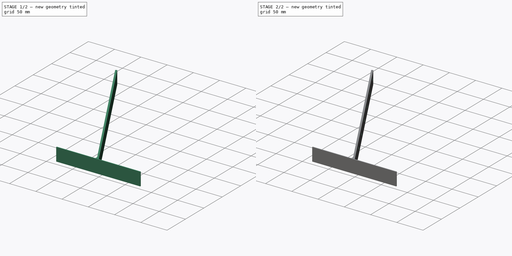
[diagram: build sequence overview — one tinted view per stage of 2, left to right]
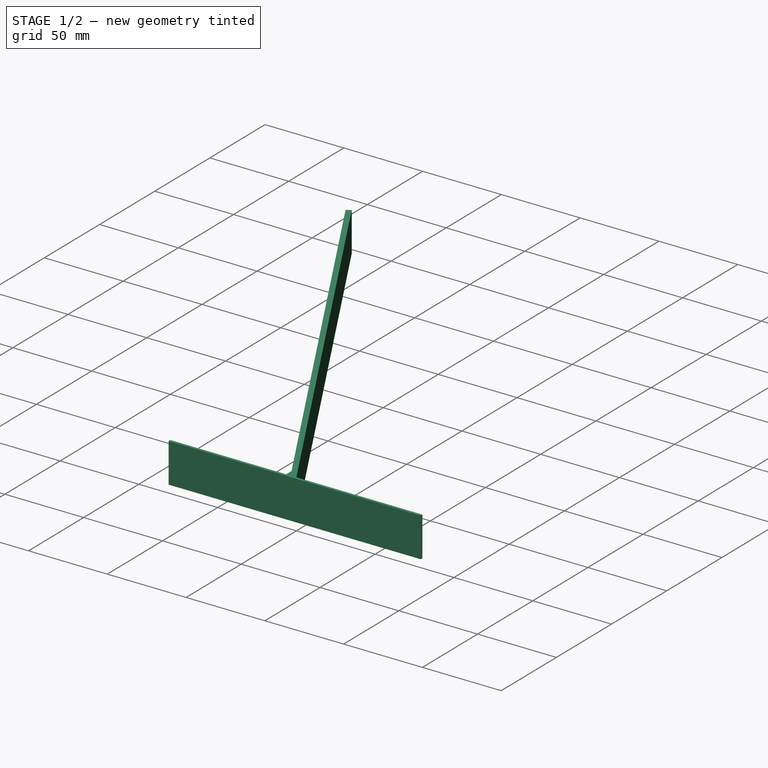
[diagram: stage 1 of 2 — iso view after this stage's code; geometry added in this stage tinted green]
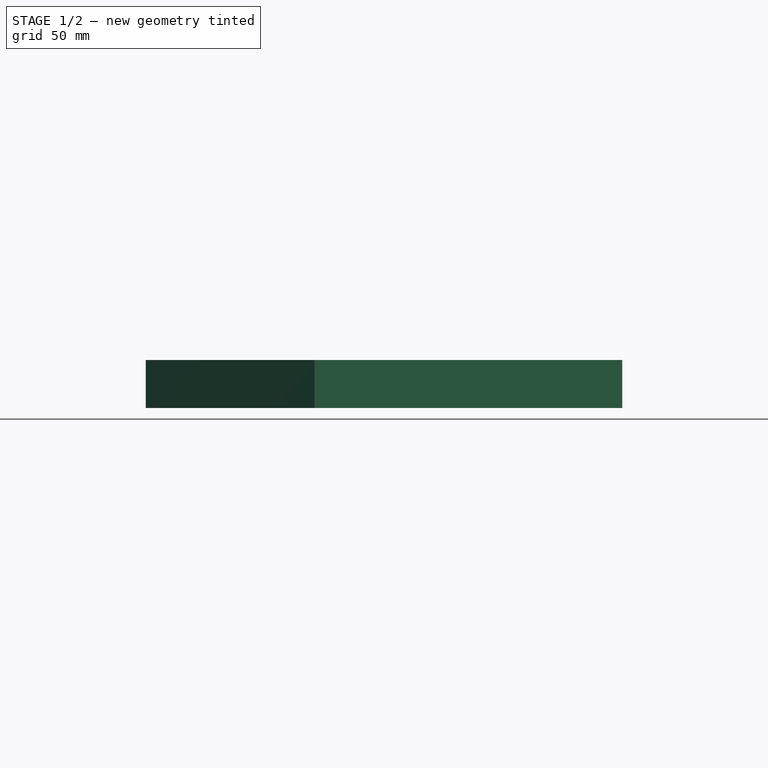
[diagram: stage 1 of 2 — front view after this stage's code; geometry added in this stage tinted green]
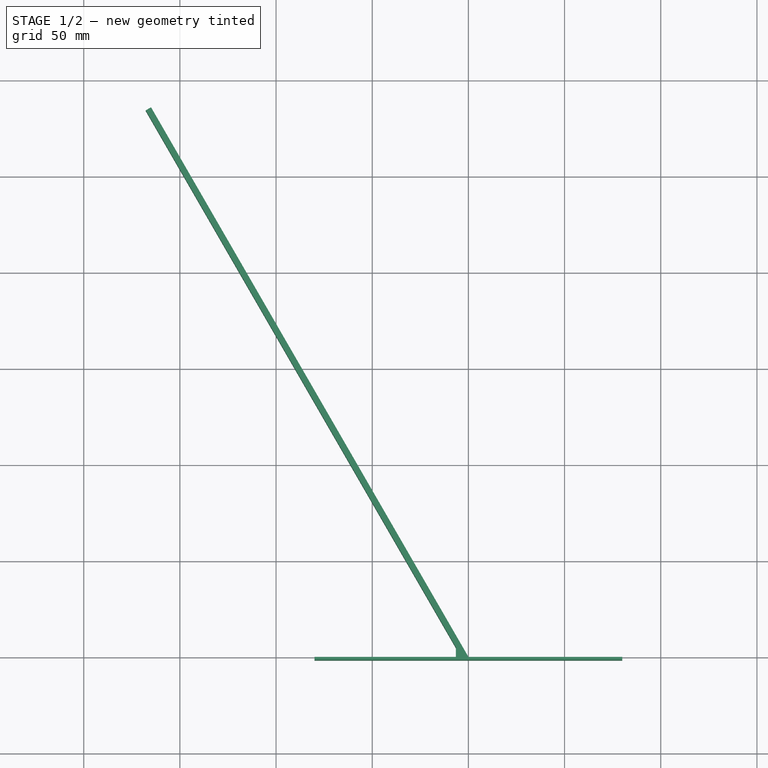
[diagram: stage 1 of 2 — top view after this stage's code; geometry added in this stage tinted green]
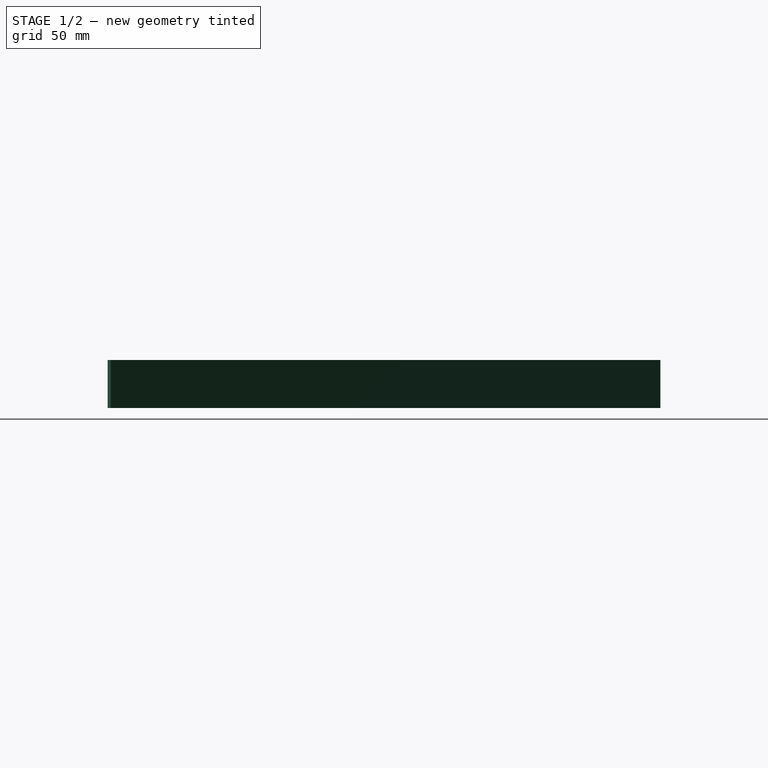
[diagram: stage 1 of 2 — right view after this stage's code; geometry added in this stage tinted green]
FCSTD DOCUMENT  (FreeCAD 0.18R16110 (Git))
Label: manifoldplant1
License: All rights reserved
LicenseURL: http://en.wikipedia.org/wiki/All_rights_reserved
objects: Sketcher::SketchObject×2, PartDesign::Pad×1, PartDesign::Pocket×1, PartDesign::Body×1
note: 7 computed .brp shape members not serialized (recipe doc carries the construction recipe); baked Part::Feature solids carry a one-line shape summary decoded from their .brp

FEATURE [Sketcher::SketchObject] Sketch
  MapMode = 5
  Support = -> [XY_Plane]
  sketch-geometry (9):
    g0: LineSegment StartX=0 StartY=0 StartZ=0 EndX=-165 EndY=285.788 EndZ=0
    g1: LineSegment StartX=0 StartY=0 StartZ=0 EndX=80 EndY=0 EndZ=0
    g2: LineSegment StartX=80 StartY=0 StartZ=0 EndX=80 EndY=-1.6 EndZ=0
    g3: LineSegment StartX=80 StartY=-1.6 StartZ=0 EndX=-80 EndY=-1.6 EndZ=0
    g4: LineSegment StartX=-80 StartY=-1.6 StartZ=0 EndX=-80 EndY=0 EndZ=0
    g5: LineSegment StartX=-80 StartY=0 StartZ=0 EndX=-6.5 EndY=0 EndZ=0
    g6: LineSegment StartX=-165 StartY=285.788 StartZ=0 EndX=-167.771 EndY=284.188 EndZ=0
    g7: LineSegment StartX=-167.771 StartY=284.188 StartZ=0 EndX=-6.5 EndY=4.85833 EndZ=0
    g8: LineSegment StartX=-6.5 StartY=0 StartZ=0 EndX=-6.5 EndY=4.85833 EndZ=0
  constraints (26):
    c: Coincident(g0,g-1)
    c: Distance(g0) = 330
    c: Coincident(g1,g0)
    c: PointOnObject(g1,g-1)
    c: Distance(g1) = 80
    c: Coincident(g1,g2)
    c: Vertical(g2)
    c: Coincident(g2,g3)
    c: Horizontal(g3)
    c: Coincident(g3,g4)
    c: PointOnObject(g4,g-1)
    c: Vertical(g4)
    c: Distance(g2) = 1.6
    c: Coincident(g5,g4)
    c: PointOnObject(g5,g-1)
    c: Angle(g6,g0) = 1.5708
    c: Distance(g6) = 3.2
    c: Coincident(g7,g6)
    c: Parallel(g7,g0)
    c: Coincident(g8,g5)
    c: Vertical(g8)
    c: Coincident(g7,g8)
    c: Coincident(g6,g0)
    c: DistanceX(g5) = -6.5
    c: Angle(g-2,g0) = 0.523599
    c: DistanceX(g3) = -80
FEATURE [PartDesign::Pad] Pad
  Length = 25
  Length2 = 100
  Profile = -> Sketch
  Type = 0
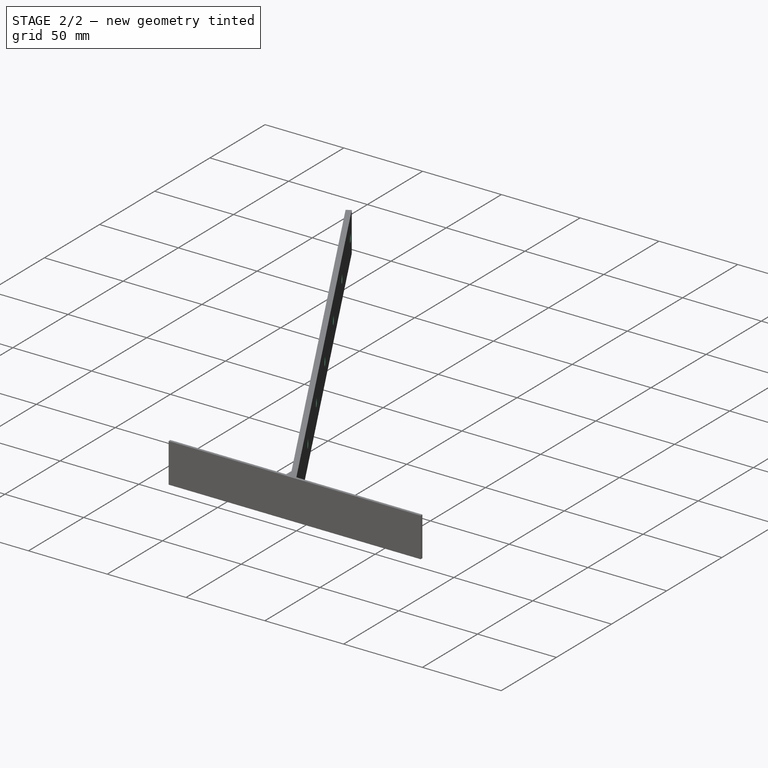
[diagram: stage 2 of 2 — iso view after this stage's code; geometry added in this stage tinted green]
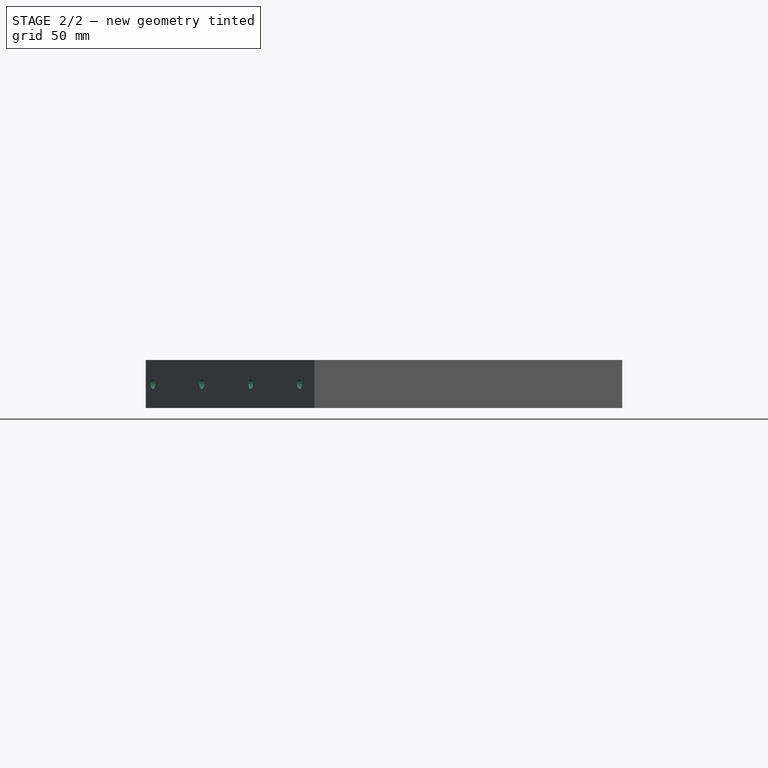
[diagram: stage 2 of 2 — front view after this stage's code; geometry added in this stage tinted green]
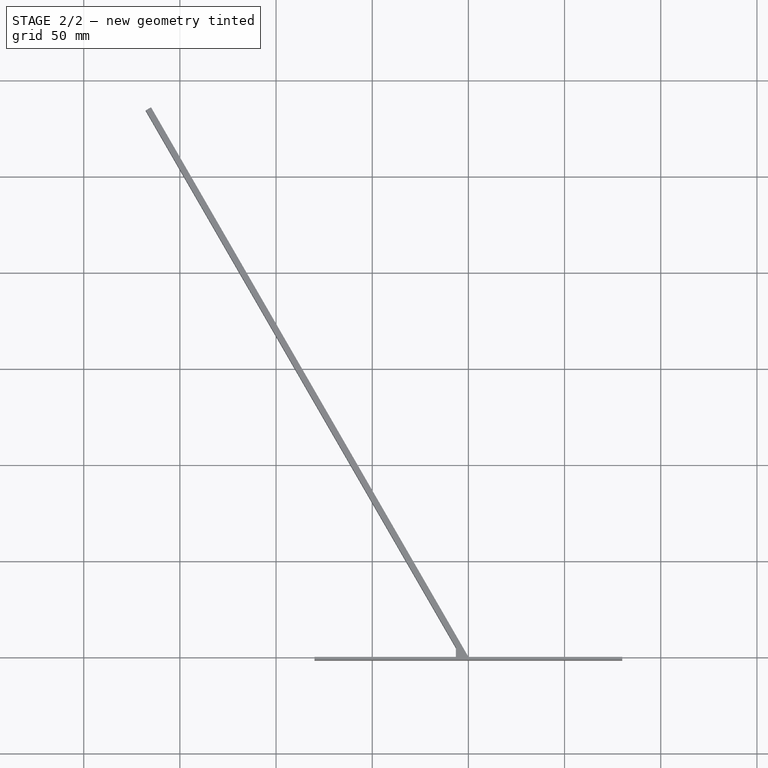
[diagram: stage 2 of 2 — top view after this stage's code; geometry added in this stage tinted green]
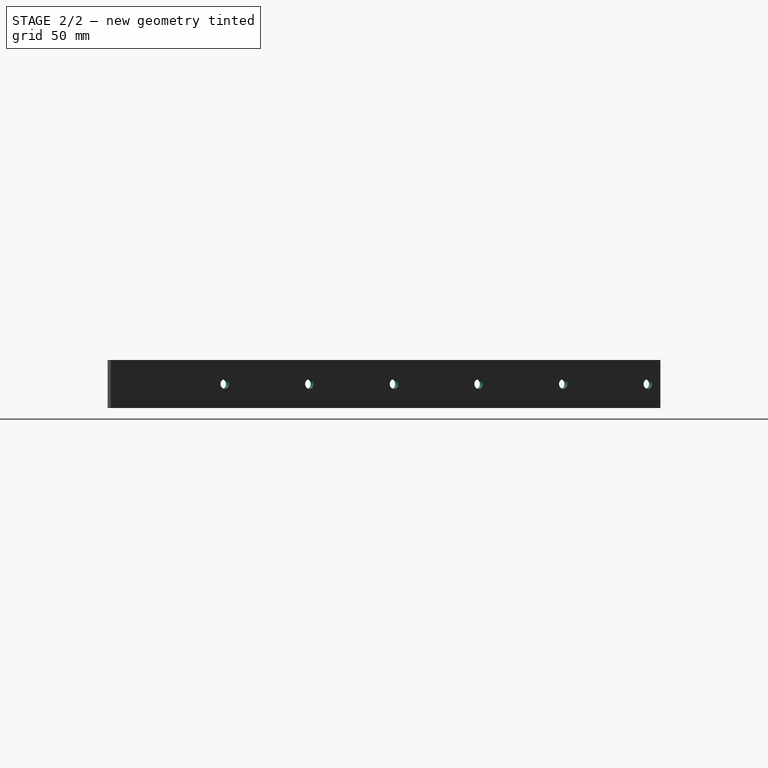
[diagram: stage 2 of 2 — right view after this stage's code; geometry added in this stage tinted green]
FEATURE [Sketcher::SketchObject] Sketch001
  MapMode = 5
  Placement = pos=(0,0,0) rot=(0.377964,0.654654,0.654654;2.41886rad)
  Support = -> [Pad]
  sketch-geometry (7):
    g0: LineSegment [constr] StartX=68.5 StartY=12.5 StartZ=0 EndX=322.5 EndY=12.5 EndZ=0
    g1: Circle CenterX=322.474 CenterY=12.5 CenterZ=0 NormalX=0 NormalY=0 NormalZ=1 AngleXU=0 Radius=2.55
    g2: Circle CenterX=271.7 CenterY=12.5 CenterZ=0 NormalX=0 NormalY=0 NormalZ=1 AngleXU=0 Radius=2.55
    g3: Circle CenterX=220.9 CenterY=12.5 CenterZ=0 NormalX=0 NormalY=0 NormalZ=1 AngleXU=0 Radius=2.55
    g4: Circle CenterX=170.1 CenterY=12.5 CenterZ=0 NormalX=0 NormalY=0 NormalZ=1 AngleXU=0 Radius=2.55
    g5: Circle CenterX=119.3 CenterY=12.5 CenterZ=0 NormalX=0 NormalY=0 NormalZ=1 AngleXU=0 Radius=2.55
    g6: Circle CenterX=68.5 CenterY=12.5 CenterZ=0 NormalX=0 NormalY=0 NormalZ=1 AngleXU=0 Radius=2.55
  constraints (20):
    c: Horizontal(g0)
    c: DistanceX(g0) = 322.5
    c: DistanceX(g0) = 68.5
    c: DistanceY(g0) = 12.5
    c: PointOnObject(g1,g0)
    c: PointOnObject(g2,g0)
    c: PointOnObject(g3,g0)
    c: PointOnObject(g4,g0)
    c: PointOnObject(g5,g0)
    c: Coincident(g6,g0)
    c: Equal(g1,g2)
    c: Equal(g2,g3)
    c: Equal(g3,g4)
    c: Equal(g4,g5)
    c: Equal(g5,g6)
    c: Radius(g1) = 2.55
    c: DistanceX(g2) = 271.7
    c: DistanceX(g3) = 220.9
    c: DistanceX(g4) = 170.1
    c: DistanceX(g5) = 119.3
FEATURE [PartDesign::Pocket] Pocket
  BaseFeature = -> Pad
  Length = 5
  Length2 = 100
  Profile = -> Sketch001
  Type = 0
FEATURE [PartDesign::Body] Body
  Group = -> [Sketch,Pad,Sketch001,Pocket]
  Origin = -> Origin
  Tip = -> Pocket
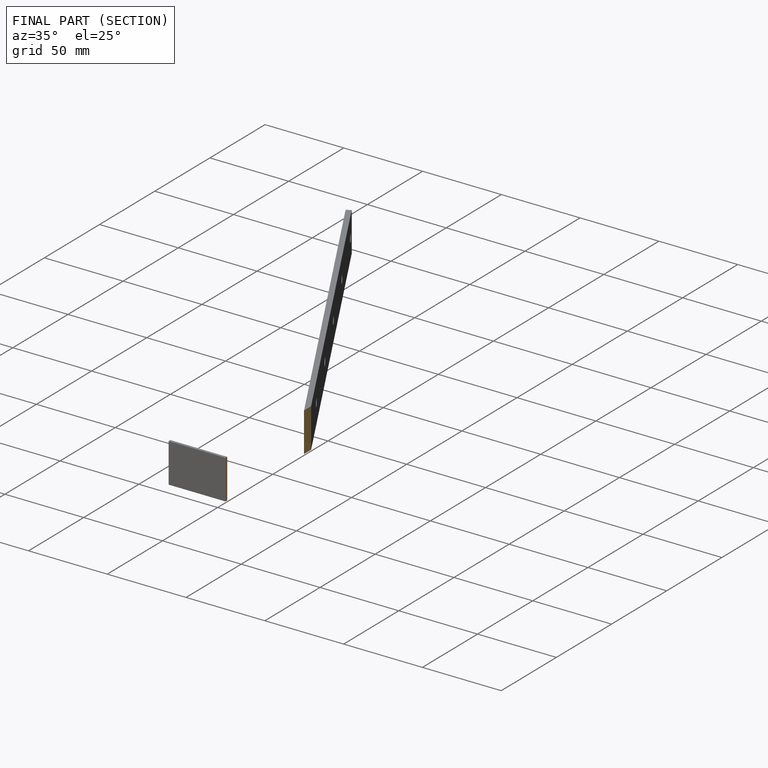
[diagram: finished part — half-section view (interior)]
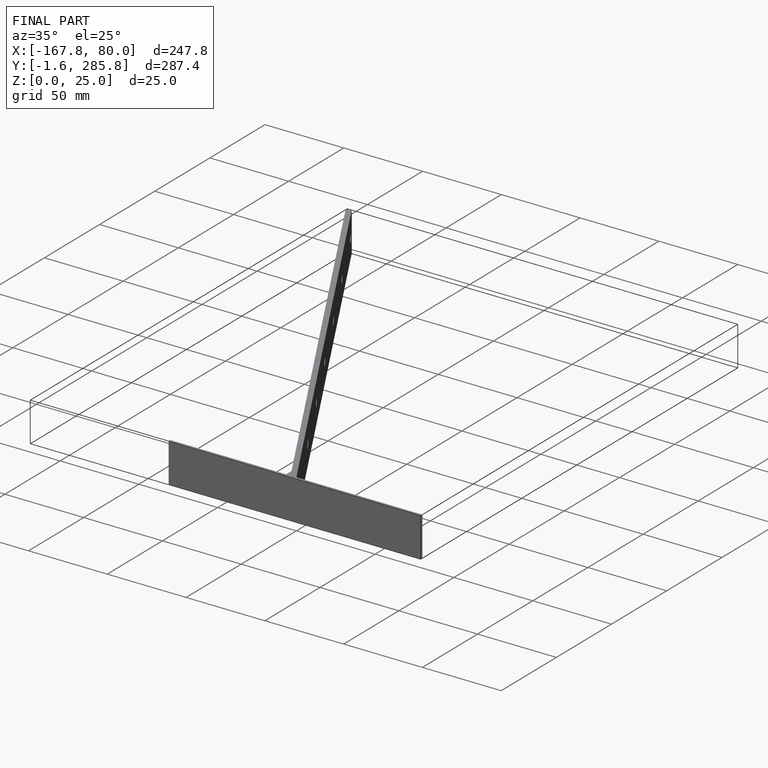
[diagram: finished part — iso view with bounding-box wireframe]
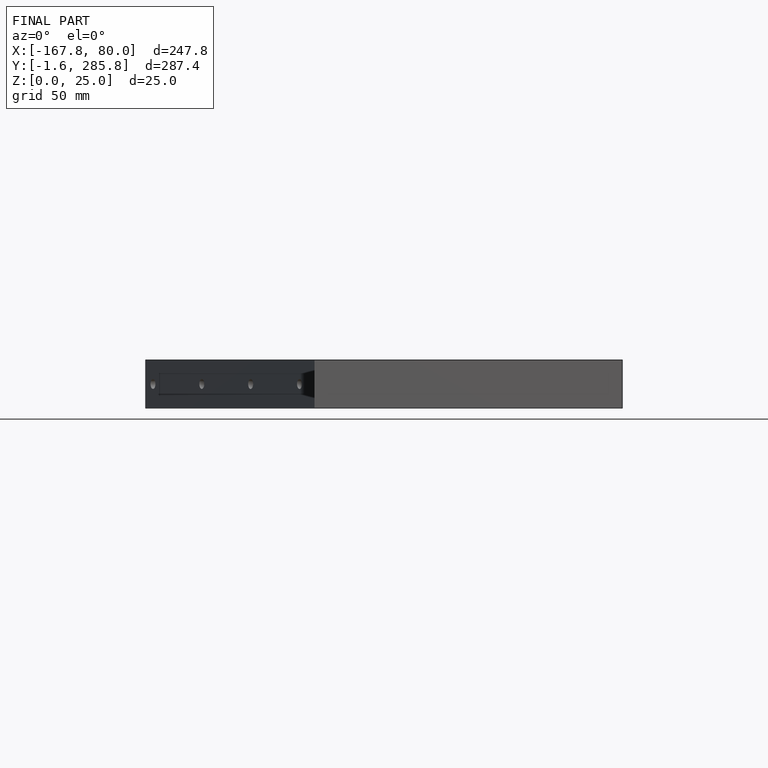
[diagram: finished part — front view with bounding-box wireframe]
